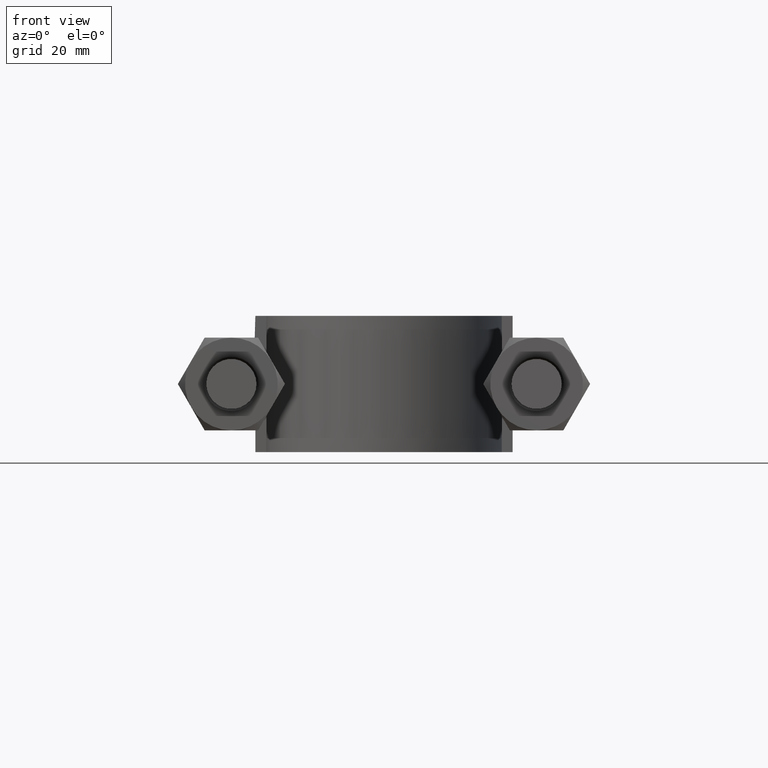
[diagram: clean part render]
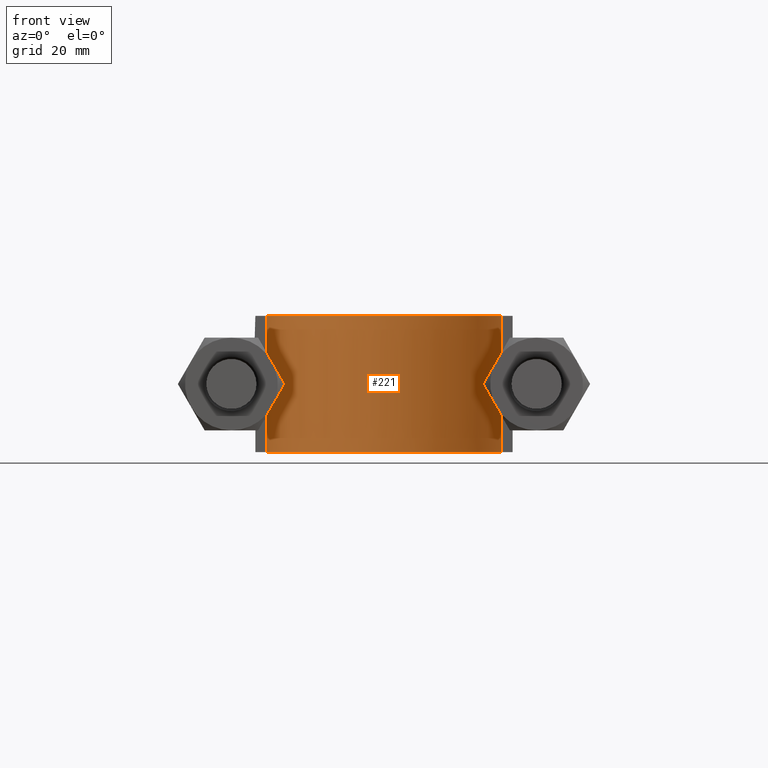
[diagram: same view with one face highlighted and labeled with its STEP entity id]
A machine part, front view. The second image highlights one B-rep face of the part: STEP entity #221.
In plain terms, the highlighted face is a SurfaceOfExtrusion surface.
Its self-contained STEP definition (entity closure, byte-faithful):
#221 = ADVANCED_FACE( '', ( #302 ), #303, .T. );
#302 = FACE_OUTER_BOUND( '', #474, .T. );
#303 = SURFACE_OF_LINEAR_EXTRUSION( '', #475, #476 );
#474 = EDGE_LOOP( '', ( #1481, #1482, #1483, #1484 ) );
#475 = B_SPLINE_CURVE_WITH_KNOTS( '', 3, ( #1485, #1486, #1487, #1488, #1489, #1490, #1491, #1492, #1493, #1494, #1495, #1496, #1497, #1498, #1499, #1500, #1501 ), .UNSPECIFIED., .F., .F., ( 4, 3, 1, 1, 1, 1, 1, 1, 1, 3, 4 ), ( -7.87012987012987, -7.00000000000000, -6.50000000000000, -6.00000000000000, -5.00000000000000, -4.00000000000000, -3.00000000000000, -2.00000000000000, -1.50000000000000, -1.00000000000000, -0.129870129870130 ), .UNSPECIFIED. );
#476 = VECTOR( '', #1502, 1000.00000000000 );
#1481 = ORIENTED_EDGE( '', *, *, #2004, .T. );
#1482 = ORIENTED_EDGE( '', *, *, #2013, .T. );
#1483 = ORIENTED_EDGE( '', *, *, #2010, .F. );
#1484 = ORIENTED_EDGE( '', *, *, #2014, .T. );
#1485 = CARTESIAN_POINT( '', ( 21.6000000000000, 54.3000000000000, 12.5000100000909 ) );
#1486 = CARTESIAN_POINT( '', ( 21.6000000000000, 61.0000000000000, 12.5000100000909 ) );
#1487 = CARTESIAN_POINT( '', ( 21.6000000000000, 67.7000000000000, 12.5000100000909 ) );
#1488 = CARTESIAN_POINT( '', ( 21.6000000000000, 74.4000000000000, 12.5000100000909 ) );
#1489 = CARTESIAN_POINT( '', ( 21.6000000000000, 76.2707818787651, 12.5000100000909 ) );
#1490 = CARTESIAN_POINT( '', ( 21.0928042095142, 80.0578434494473, 12.5000100000909 ) );
#1491 = CARTESIAN_POINT( '', ( 18.2026423381404, 87.0810066931108, 12.5000100000909 ) );
#1492 = CARTESIAN_POINT( '', ( 11.3044287353241, 93.9817225147667, 12.5000100000909 ) );
#1493 = CARTESIAN_POINT( '', ( 1.88186946722117E-014, 97.0091387426166, 12.5000100000909 ) );
#1494 = CARTESIAN_POINT( '', ( -11.3044287353241, 93.9817225147668, 12.5000100000909 ) );
#1495 = CARTESIAN_POINT( '', ( -18.2026423381403, 87.0810066931107, 12.5000100000909 ) );
#1496 = CARTESIAN_POINT( '', ( -21.0928042095142, 80.0578434494473, 12.5000100000909 ) );
#1497 = CARTESIAN_POINT( '', ( -21.6000000000000, 76.2707818787651, 12.5000100000909 ) );
#1498 = CARTESIAN_POINT( '', ( -21.6000000000000, 74.4000000000000, 12.5000100000909 ) );
#1499 = CARTESIAN_POINT( '', ( -21.6000000000000, 67.7000000000000, 12.5000100000909 ) );
#1500 = CARTESIAN_POINT( '', ( -21.6000000000000, 61.0000000000000, 12.5000100000909 ) );
#1501 = CARTESIAN_POINT( '', ( -21.6000000000000, 54.3000000000000, 12.5000100000909 ) );
#1502 = DIRECTION( '', ( 0.000000000000000, 0.000000000000000, -1.00000000000000 ) );
#2004 = EDGE_CURVE( '', #2157, #2158, #2159, .T. );
#2010 = EDGE_CURVE( '', #2167, #2170, #2171, .T. );
#2013 = EDGE_CURVE( '', #2158, #2170, #2175, .F. );
#2014 = EDGE_CURVE( '', #2167, #2157, #2176, .T. );
#2157 = VERTEX_POINT( '', #2416 );
#2158 = VERTEX_POINT( '', #2417 );
#2159 = LINE( '', #2418, #2419 );
#2167 = VERTEX_POINT( '', #2468 );
#2170 = VERTEX_POINT( '', #2472 );
#2171 = LINE( '', #2473, #2474 );
#2175 = B_SPLINE_CURVE_WITH_KNOTS( '', 3, ( #2509, #2510, #2511, #2512, #2513, #2514, #2515, #2516, #2517, #2518, #2519, #2520, #2521, #2522, #2523, #2524, #2525 ), .UNSPECIFIED., .F., .F., ( 4, 3, 1, 1, 1, 1, 1, 1, 1, 3, 4 ), ( -7.87012987012987, -7.00000000000000, -6.50000000000000, -6.00000000000000, -5.00000000000000, -4.00000000000000, -3.00000000000000, -2.00000000000000, -1.50000000000000, -1.00000000000000, -0.129870129870130 ), .UNSPECIFIED. );
#2176 = B_SPLINE_CURVE_WITH_KNOTS( '', 3, ( #2526, #2527, #2528, #2529, #2530, #2531, #2532, #2533, #2534, #2535, #2536, #2537, #2538, #2539, #2540, #2541, #2542, #2543, #2544, #2545, #2546, #2547, #2548, #2549, #2550, #2551, #2552, #2553, #2554, #2555, #2556, #2557, #2558, #2559, #2560, #2561, #2562, #2563, #2564, #2565, #2566, #2567, #2568, #2569, #2570, #2571, #2572, #2573, #2574, #2575, #2576, #2577, #2578, #2579, #2580, #2581, #2582, #2583, #2584, #2585, #2586, #2587, #2588, #2589, #2590, #2591, #2592, #2593, #2594, #2595 ), .UNSPECIFIED., .F., .F., ( 4, 1, 1, 1, 2, 2, 2, 2, 2, 2, 2, 2, 2, 2, 2, 2, 2, 2, 2, 2, 2, 2, 2, 2, 2, 2, 2, 2, 2, 2, 2, 2, 2, 2, 1, 1, 1, 4 ), ( 0.000000000000000, 0.0135231659011120, 0.0169039573763899, 0.0185943531140289, 0.0194395509828484, 0.0202847488516679, 0.0219751445893068, 0.0236655403269458, 0.0270463318022237, 0.0287367275398626, 0.0304271232775015, 0.0338079147527794, 0.0371887062280573, 0.0405694977033352, 0.0439502891786131, 0.0456406849162520, 0.0473310806538910, 0.0507118721291689, 0.0524022678668079, 0.0540926636044468, 0.0574734550797247, 0.0591638508173637, 0.0608542465550027, 0.0642350380302806, 0.0659254337679195, 0.0676158295055585, 0.0709966209808364, 0.0726870167184753, 0.0743774124561143, 0.0777582039313922, 0.0811389954066701, 0.0845197868819481, 0.0879005783572260, 0.0887457762260455, 0.0895909740948650, 0.0912813698325040, 0.0946621613077820, 0.108185327208894 ), .UNSPECIFIED. );
#2416 = CARTESIAN_POINT( '', ( -21.6000000000000, 54.3000000000000, 12.5000000000000 ) );
#2417 = CARTESIAN_POINT( '', ( -21.6000000000000, 54.3000000000000, -12.5000000000000 ) );
#2418 = CARTESIAN_POINT( '', ( -21.6000000000000, 54.3000000000000, 12.5000100000909 ) );
#2419 = VECTOR( '', #3070, 1000.00000000000 );
#2468 = CARTESIAN_POINT( '', ( 21.6000000000000, 54.3000000000000, 12.5000000000000 ) );
#2472 = CARTESIAN_POINT( '', ( 21.6000000000000, 54.3000000000000, -12.5000000000000 ) );
#2473 = CARTESIAN_POINT( '', ( 21.6000000000000, 54.3000000000000, 12.5000100000909 ) );
#2474 = VECTOR( '', #3074, 1000.00000000000 );
#2509 = CARTESIAN_POINT( '', ( 21.6000000000000, 54.3000000000000, -12.5000000000000 ) );
#2510 = CARTESIAN_POINT( '', ( 21.6000000000000, 61.0000000000000, -12.5000000000000 ) );
#2511 = CARTESIAN_POINT( '', ( 21.6000000000000, 67.7000000000000, -12.5000000000000 ) );
#2512 = CARTESIAN_POINT( '', ( 21.6000000000000, 74.4000000000000, -12.5000000000000 ) );
#2513 = CARTESIAN_POINT( '', ( 21.6000000000000, 76.2707818787651, -12.5000000000000 ) );
#2514 = CARTESIAN_POINT( '', ( 21.0928042095142, 80.0578434494473, -12.5000000000000 ) );
#2515 = CARTESIAN_POINT( '', ( 18.2026423381404, 87.0810066931108, -12.5000000000000 ) );
#2516 = CARTESIAN_POINT( '', ( 11.3044287353241, 93.9817225147667, -12.5000000000000 ) );
#2517 = CARTESIAN_POINT( '', ( 1.88186946722117E-014, 97.0091387426166, -12.5000000000000 ) );
#2518 = CARTESIAN_POINT( '', ( -11.3044287353241, 93.9817225147668, -12.5000000000000 ) );
#2519 = CARTESIAN_POINT( '', ( -18.2026423381403, 87.0810066931107, -12.5000000000000 ) );
#2520 = CARTESIAN_POINT( '', ( -21.0928042095142, 80.0578434494473, -12.5000000000000 ) );
#2521 = CARTESIAN_POINT( '', ( -21.6000000000000, 76.2707818787651, -12.5000000000000 ) );
#2522 = CARTESIAN_POINT( '', ( -21.6000000000000, 74.4000000000000, -12.5000000000000 ) );
#2523 = CARTESIAN_POINT( '', ( -21.6000000000000, 67.7000000000000, -12.5000000000000 ) );
#2524 = CARTESIAN_POINT( '', ( -21.6000000000000, 61.0000000000000, -12.5000000000000 ) );
#2525 = CARTESIAN_POINT( '', ( -21.6000000000000, 54.3000000000000, -12.5000000000000 ) );
#2526 = CARTESIAN_POINT( '', ( 21.6000000000000, 54.3000000000000, 12.5000000000000 ) );
#2527 = CARTESIAN_POINT( '', ( 21.6000000000000, 58.8078030796335, 12.5000000000000 ) );
#2528 = CARTESIAN_POINT( '', ( 21.6000000000000, 64.4425569291754, 12.5000000000000 ) );
#2529 = CARTESIAN_POINT( '', ( 21.6000000000000, 70.6407861636715, 12.5000000000000 ) );
#2530 = CARTESIAN_POINT( '', ( 21.6000000000000, 72.6129500110112, 12.5000000000000 ) );
#2531 = CARTESIAN_POINT( '', ( 21.6000000000000, 73.4581630884425, 12.5000000000000 ) );
#2532 = CARTESIAN_POINT( '', ( 21.6000000000000, 74.0216384733967, 12.5000000000000 ) );
#2533 = CARTESIAN_POINT( '', ( 21.6016868866855, 74.3033862855928, 12.5000000000000 ) );
#2534 = CARTESIAN_POINT( '', ( 21.5941473148947, 75.1485541327496, 12.5000000000000 ) );
#2535 = CARTESIAN_POINT( '', ( 21.5662932291956, 75.7118624196277, 12.5000000000000 ) );
#2536 = CARTESIAN_POINT( '', ( 21.4660466240226, 76.8382118050554, 12.5000000000000 ) );
#2537 = CARTESIAN_POINT( '', ( 21.3934997931487, 77.4007781127302, 12.5000000000000 ) );
#2538 = CARTESIAN_POINT( '', ( 21.1137244660228, 79.0644770260068, 12.5000000000000 ) );
#2539 = CARTESIAN_POINT( '', ( 20.8443432397078, 80.1498681355507, 12.5000000000000 ) );
#2540 = CARTESIAN_POINT( '', ( 20.3169229678079, 81.7426141857047, 12.5000000000000 ) );
#2541 = CARTESIAN_POINT( '', ( 20.1204432841999, 82.2676065264572, 12.5000000000000 ) );
#2542 = CARTESIAN_POINT( '', ( 19.6849320818904, 83.3053996627897, 12.5000000000000 ) );
#2543 = CARTESIAN_POINT( '', ( 19.4446614349743, 83.8204297573999, 12.5000000000000 ) );
#2544 = CARTESIAN_POINT( '', ( 18.6684950229906, 85.3244383250887, 12.5000000000000 ) );
#2545 = CARTESIAN_POINT( '', ( 18.0769270085057, 86.2744513721938, 12.5000000000000 ) );
#2546 = CARTESIAN_POINT( '', ( 16.7529195258009, 88.0743989142740, 12.5000000000000 ) );
#2547 = CARTESIAN_POINT( '', ( 16.0200911873579, 88.9252873863386, 12.5000000000000 ) );
#2548 = CARTESIAN_POINT( '', ( 14.4128259168033, 90.5214747358976, 12.5000000000000 ) );
#2549 = CARTESIAN_POINT( '', ( 13.5580348793817, 91.2474792809738, 12.5000000000000 ) );
#2550 = CARTESIAN_POINT( '', ( 11.7487973458944, 92.5590603088197, 12.5000000000000 ) );
#2551 = CARTESIAN_POINT( '', ( 10.7940352803573, 93.1441921113883, 12.5000000000000 ) );
#2552 = CARTESIAN_POINT( '', ( 9.28291683850485, 93.9106028409484, 12.5000000000000 ) );
#2553 = CARTESIAN_POINT( '', ( 8.76688933898163, 94.1469814262959, 12.5000000000000 ) );
#2554 = CARTESIAN_POINT( '', ( 7.72704803755930, 94.5751653360497, 12.5000000000000 ) );
#2555 = CARTESIAN_POINT( '', ( 7.20104342927318, 94.7681270441960, 12.5000000000000 ) );
#2556 = CARTESIAN_POINT( '', ( 5.60522003708373, 95.2851576032092, 12.5000000000000 ) );
#2557 = CARTESIAN_POINT( '', ( 4.51773658274787, 95.5478751313466, 12.5000000000000 ) );
#2558 = CARTESIAN_POINT( '', ( 2.85023521541968, 95.8159602825123, 12.5000000000000 ) );
#2559 = CARTESIAN_POINT( '', ( 2.28591125961179, 95.8842927632193, 12.5000000000000 ) );
#2560 = CARTESIAN_POINT( '', ( 1.16191586217194, 95.9755534961753, 12.5000000000000 ) );
#2561 = CARTESIAN_POINT( '', ( 0.601211685233130, 95.9988511425481, 12.5000000000000 ) );
#2562 = CARTESIAN_POINT( '', ( -1.07704505152027, 96.0021735987778, 12.5000000000000 ) );
#2563 = CARTESIAN_POINT( '', ( -2.19076731773876, 95.9160681926210, 12.5000000000000 ) );
#2564 = CARTESIAN_POINT( '', ( -3.85383561017256, 95.6571613761924, 12.5000000000000 ) );
#2565 = CARTESIAN_POINT( '', ( -4.40765029596285, 95.5489362348310, 12.5000000000000 ) );
#2566 = CARTESIAN_POINT( '', ( -5.50969437777182, 95.2885553897380, 12.5000000000000 ) );
#2567 = CARTESIAN_POINT( '', ( -6.05215769470159, 95.1378230506362, 12.5000000000000 ) );
#2568 = CARTESIAN_POINT( '', ( -7.65458034955576, 94.6257016671255, 12.5000000000000 ) );
#2569 = CARTESIAN_POINT( '', ( -8.68976887568343, 94.2048598409189, 12.5000000000000 ) );
#2570 = CARTESIAN_POINT( '', ( -10.1920361507629, 93.4523540893674, 12.5000000000000 ) );
#2571 = CARTESIAN_POINT( '', ( -10.6843068104454, 93.1811536314306, 12.5000000000000 ) );
#2572 = CARTESIAN_POINT( '', ( -11.6512116265084, 92.5964230902266, 12.5000000000000 ) );
#2573 = CARTESIAN_POINT( '', ( -12.1245518901083, 92.2835606581346, 12.5000000000000 ) );
#2574 = CARTESIAN_POINT( '', ( -13.4940506802498, 91.2993829505195, 12.5000000000000 ) );
#2575 = CARTESIAN_POINT( '', ( -14.3483977984834, 90.5779831351971, 12.5000000000000 ) );
#2576 = CARTESIAN_POINT( '', ( -15.5445244245930, 89.4008375271324, 12.5000000000000 ) );
#2577 = CARTESIAN_POINT( '', ( -15.9289126706020, 88.9925164105730, 12.5000000000000 ) );
#2578 = CARTESIAN_POINT( '', ( -16.6684043052147, 88.1432793403302, 12.5000000000000 ) );
#2579 = CARTESIAN_POINT( '', ( -17.0248134305994, 87.7004293677336, 12.5000000000000 ) );
#2580 = CARTESIAN_POINT( '', ( -18.0326739447613, 86.3423149081644, 12.5000000000000 ) );
#2581 = CARTESIAN_POINT( '', ( -18.6267452534931, 85.3943045919171, 12.5000000000000 ) );
#2582 = CARTESIAN_POINT( '', ( -19.6599214235239, 83.4134684385162, 12.5000000000000 ) );
#2583 = CARTESIAN_POINT( '', ( -20.1004689641877, 82.3791428767158, 12.5000000000000 ) );
#2584 = CARTESIAN_POINT( '', ( -20.8221292198643, 80.2326486444712, 12.5000000000000 ) );
#2585 = CARTESIAN_POINT( '', ( -21.0954136423922, 79.1448754351828, 12.5000000000000 ) );
#2586 = CARTESIAN_POINT( '', ( -21.4751329492846, 76.9416443697406, 12.5000000000000 ) );
#2587 = CARTESIAN_POINT( '', ( -21.5818004860624, 75.8262251166299, 12.5000000000000 ) );
#2588 = CARTESIAN_POINT( '', ( -21.6019152180314, 74.4131649802125, 12.5000000000000 ) );
#2589 = CARTESIAN_POINT( '', ( -21.6000000000000, 74.1295676581122, 12.5000000000000 ) );
#2590 = CARTESIAN_POINT( '', ( -21.6000000000000, 73.5630085821661, 12.5000000000000 ) );
#2591 = CARTESIAN_POINT( '', ( -21.6000000000000, 72.7131699682470, 12.5000000000000 ) );
#2592 = CARTESIAN_POINT( '', ( -21.6000000000000, 70.7302132024358, 12.5000000000000 ) );
#2593 = CARTESIAN_POINT( '', ( -21.6000000000000, 64.4980633670291, 12.5000000000000 ) );
#2594 = CARTESIAN_POINT( '', ( -21.6000000000000, 58.8324726075685, 12.5000000000000 ) );
#2595 = CARTESIAN_POINT( '', ( -21.6000000000000, 54.3000000000000, 12.5000000000000 ) );
#3070 = DIRECTION( '', ( 0.000000000000000, 0.000000000000000, -1.00000000000000 ) );
#3074 = DIRECTION( '', ( 0.000000000000000, 0.000000000000000, -1.00000000000000 ) );